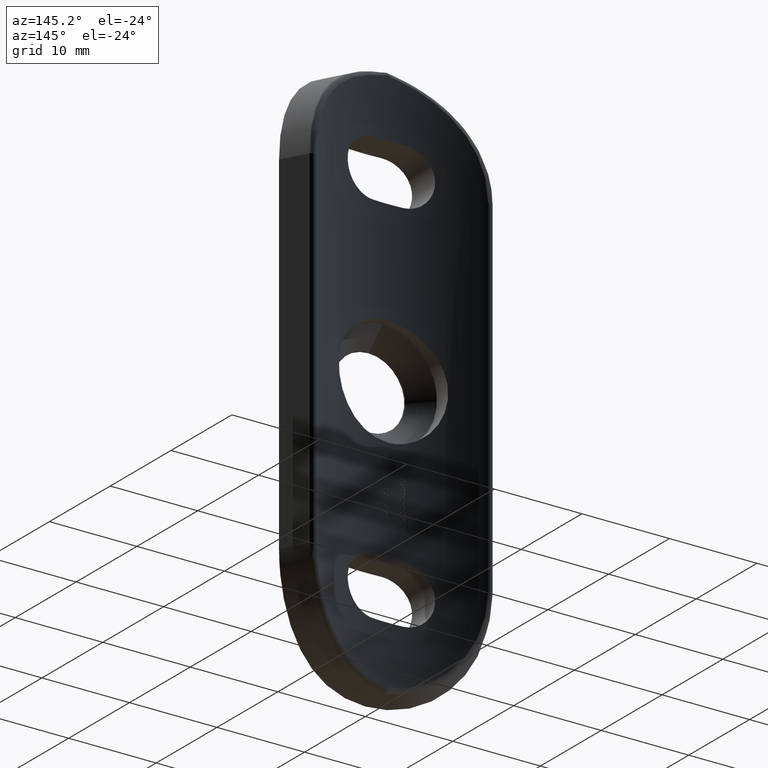
[diagram: clean part render]
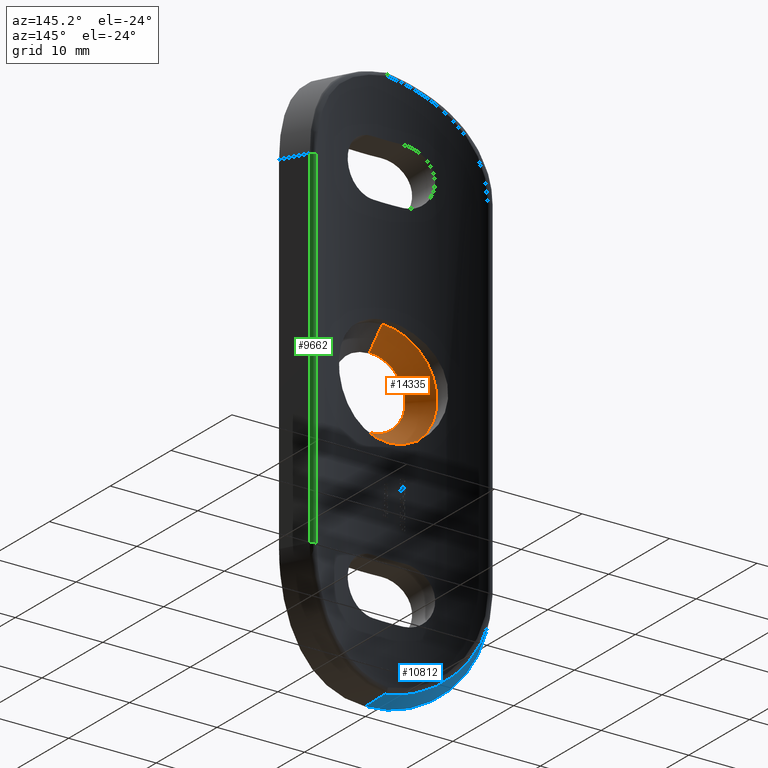
[diagram: same view with three faces highlighted in distinct colors, each labeled with its STEP entity id]
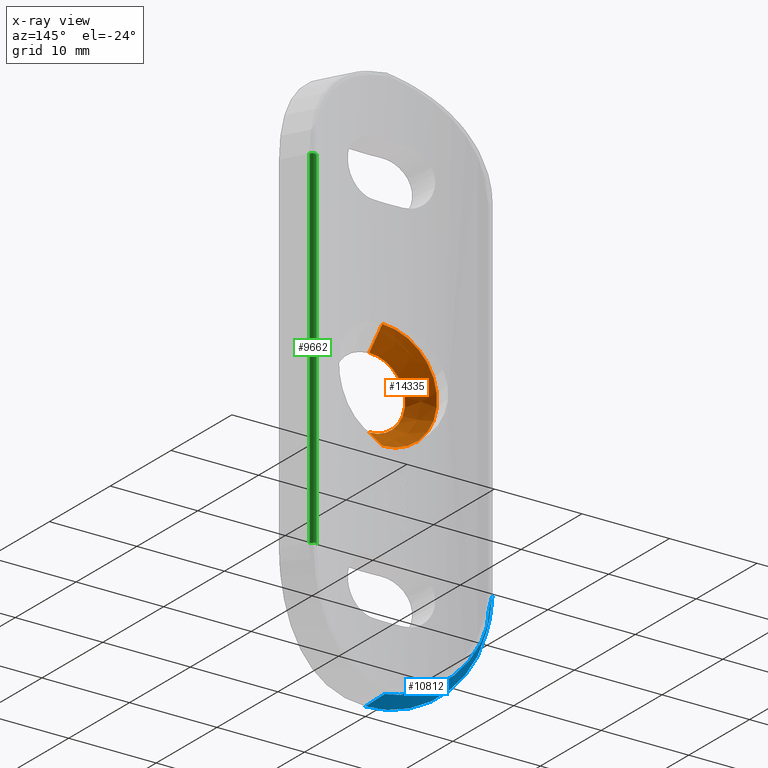
[diagram: x-ray of the same camera — body ghosted, the three highlighted faces saturated]
A machine part, auxiliary view with three faces highlighted in distinct colors.
The next image is the same camera in x-ray (body ghosted, the three faces saturated) — at least one of them is partly hidden behind the body in this view.
Their STEP definitions:

[orange] entity #14335 — the highlighted conical surface has half-angle 45 deg.
#542 = CARTESIAN_POINT ( 'NONE',  ( 0.0000000000000000000, 0.6499999999999734900, 4.099999999999999600 ) ) ;
#1817 = DIRECTION ( 'NONE',  ( 8.659560562354884800E-017, 0.7071067811865515700, -0.7071067811865435800 ) ) ;
#2496 = ORIENTED_EDGE ( 'NONE', *, *, #7634, .F. ) ;
#2539 = CARTESIAN_POINT ( 'NONE',  ( 0.0000000000000000000, 2.800000000000000300, 0.0000000000000000000 ) ) ;
#2854 = VERTEX_POINT ( 'NONE', #542 ) ;
#3999 = ORIENTED_EDGE ( 'NONE', *, *, #7363, .F. ) ;
#4606 = CARTESIAN_POINT ( 'NONE',  ( 0.0000000000000000000, 0.6499999999999734900, 0.0000000000000000000 ) ) ;
#4680 = CARTESIAN_POINT ( 'NONE',  ( 6.337547185587553000E-016, 0.6499999999999734900, -4.099999999999999600 ) ) ;
#4724 = DIRECTION ( 'NONE',  ( 0.0000000000000000000, 0.0000000000000000000, 1.000000000000000000 ) ) ;
#4815 = DIRECTION ( 'NONE',  ( -0.0000000000000000000, -1.000000000000000000, -0.0000000000000000000 ) ) ;
#4916 = VECTOR ( 'NONE', #1817, 999.9999999999998900 ) ;
#7075 = CARTESIAN_POINT ( 'NONE',  ( 0.0000000000000000000, 0.6499999999999734900, 0.0000000000000000000 ) ) ;
#7156 = VERTEX_POINT ( 'NONE', #9266 ) ;
#7363 = EDGE_CURVE ( 'NONE', #2854, #8694, #8332, .T. ) ;
#7475 = EDGE_CURVE ( 'NONE', #11031, #7156, #9071, .T. ) ;
#7527 = CIRCLE ( 'NONE', #11072, 4.099999999999999600 ) ;
#7634 = EDGE_CURVE ( 'NONE', #8694, #7156, #13723, .T. ) ;
#7699 = CARTESIAN_POINT ( 'NONE',  ( 5.021051876504147400E-016, 0.6499999999999734900, -4.099999999999999600 ) ) ;
#8332 = LINE ( 'NONE', #10884, #12633 ) ;
#8694 = VERTEX_POINT ( 'NONE', #14645 ) ;
#9071 = LINE ( 'NONE', #7699, #4916 ) ;
#9266 = CARTESIAN_POINT ( 'NONE',  ( 0.0000000000000000000, 2.800000000000000300, -6.250000000000001800 ) ) ;
#9815 = DIRECTION ( 'NONE',  ( 0.0000000000000000000, 0.0000000000000000000, -1.000000000000000000 ) ) ;
#10884 = CARTESIAN_POINT ( 'NONE',  ( 0.0000000000000000000, 0.6499999999999734900, 4.099999999999999600 ) ) ;
#11031 = VERTEX_POINT ( 'NONE', #4680 ) ;
#11072 = AXIS2_PLACEMENT_3D ( 'NONE', #4606, #4815, #15536 ) ;
#11416 = EDGE_CURVE ( 'NONE', #2854, #11031, #7527, .T. ) ;
#11950 = DIRECTION ( 'NONE',  ( 0.0000000000000000000, 1.000000000000000000, 0.0000000000000000000 ) ) ;
#12633 = VECTOR ( 'NONE', #14378, 999.9999999999998900 ) ;
#12839 = CONICAL_SURFACE ( 'NONE', #12992, 4.099999999999999600, 0.7853981633974426200 ) ;
#12992 = AXIS2_PLACEMENT_3D ( 'NONE', #7075, #11950, #4724 ) ;
#13519 = DIRECTION ( 'NONE',  ( -0.0000000000000000000, -1.000000000000000000, -0.0000000000000000000 ) ) ;
#13723 = CIRCLE ( 'NONE', #13743, 6.250000000000001800 ) ;
#13743 = AXIS2_PLACEMENT_3D ( 'NONE', #2539, #13519, #9815 ) ;
#13869 = FACE_OUTER_BOUND ( 'NONE', #14334, .T. ) ;
#14334 = EDGE_LOOP ( 'NONE', ( #14478, #15213, #2496, #3999 ) ) ;
#14335 = ADVANCED_FACE ( 'NONE', ( #13869 ), #12839, .F. ) ;
#14378 = DIRECTION ( 'NONE',  ( 0.0000000000000000000, 0.7071067811865515700, 0.7071067811865435800 ) ) ;
#14478 = ORIENTED_EDGE ( 'NONE', *, *, #11416, .T. ) ;
#14645 = CARTESIAN_POINT ( 'NONE',  ( 7.654042494670960600E-016, 2.800000000000000300, 6.250000000000002700 ) ) ;
#15213 = ORIENTED_EDGE ( 'NONE', *, *, #7475, .T. ) ;
#15536 = DIRECTION ( 'NONE',  ( 0.0000000000000000000, 0.0000000000000000000, -1.000000000000000000 ) ) ;

[blue] entity #10812 — the highlighted cylindrical surface (partial cylindrical patch) has radius 12 mm, axis along (-0.4819, -0.8762, 0).
#279 = CARTESIAN_POINT ( 'NONE',  ( -10.45505487545768000, 5.891269701761550500, -20.00000000000000400 ) ) ;
#460 = VERTEX_POINT ( 'NONE', #4483 ) ;
#830 = CARTESIAN_POINT ( 'NONE',  ( -3.198330643184879900, 0.2031510813098111900, -31.65048156429587700 ) ) ;
#1002 = CARTESIAN_POINT ( 'NONE',  ( -9.887935222964619800, 2.046306664894907100, -27.14406495904744400 ) ) ;
#1416 = CARTESIAN_POINT ( 'NONE',  ( -6.164181800682564800, 0.7651474880378932300, -30.55211743802890100 ) ) ;
#1439 = CARTESIAN_POINT ( 'NONE',  ( -5.467565589066913900, 3.970306275829788700, -29.95920198927894900 ) ) ;
#1490 = CARTESIAN_POINT ( 'NONE',  ( -4.534825437327057800, 3.748821515126901100, -30.52213823842947700 ) ) ;
#1534 = DIRECTION ( 'NONE',  ( -0.4819277108433738800, -0.8762109800277929600, 0.0000000000000000000 ) ) ;
#1541 = CARTESIAN_POINT ( 'NONE',  ( -6.614694112078482600, 4.293231788751549900, -29.09215257876479300 ) ) ;
#2208 = CARTESIAN_POINT ( 'NONE',  ( -9.659094786861166100, 1.948286492643255000, -27.46718664785970200 ) ) ;
#2632 = CARTESIAN_POINT ( 'NONE',  ( -8.056363116155694100, 4.804545384783355500, -27.50031777044232900 ) ) ;
#2679 = CARTESIAN_POINT ( 'NONE',  ( 0.2976642904539989500, 0.5411946932902975700, -20.00000000000000400 ) ) ;
#3363 = EDGE_CURVE ( 'NONE', #13975, #12611, #4622, .T. ) ;
#3459 = EDGE_CURVE ( 'NONE', #7533, #460, #13655, .T. ) ;
#3854 = CARTESIAN_POINT ( 'NONE',  ( -0.7358220946504399100, 3.251452348229520300, -31.79923357073366600 ) ) ;
#3951 = CARTESIAN_POINT ( 'NONE',  ( -5.764533070701305400, 4.049605539781783400, -29.75166888921781400 ) ) ;
#4483 = CARTESIAN_POINT ( 'NONE',  ( 1.354727536736092600E-015, 0.0000000000000000000, -32.00000000000000000 ) ) ;
#4622 = B_SPLINE_CURVE_WITH_KNOTS ( 'NONE', 3,
 ( #279, #14502, #11121, #14557, #10970, #8664, #12339, #5186, #13516, #8565, #8712, #2632, #6368, #11175, #1541, #3951, #1439, #13408, #1490, #12387, #6259, #14719, #7581, #3854, #5023, #14613 ),
 .UNSPECIFIED., .F., .F.,
 ( 4, 2, 2, 2, 2, 2, 2, 2, 2, 2, 2, 2, 4 ),
 ( 0.0000000000000000000, 0.002199629699753315400, 0.003299444549629968600, 0.004399259399506621300, 0.006598889099259936400, 0.007698703949136591700, 0.008798518799013246200, 0.01099814849876655000, 0.01209796334864320400, 0.01319777819851985900, 0.01539740789827316900, 0.01649722274814982900, 0.01759703759802648500 ),
 .UNSPECIFIED. ) ;
#5023 = CARTESIAN_POINT ( 'NONE',  ( -0.3694255239971571100, 3.236962632278305800, -31.85580555292284200 ) ) ;
#5186 = CARTESIAN_POINT ( 'NONE',  ( -9.493047847731208600, 5.415295632416780700, -25.01326570578500300 ) ) ;
#5290 = CARTESIAN_POINT ( 'NONE',  ( -11.62834804759316000, 2.881689642610588900, -23.18144421163977900 ) ) ;
#5434 = CARTESIAN_POINT ( 'NONE',  ( -4.352835420540757600, 0.3805286105153351500, -31.32115928304209600 ) ) ;
#5684 = LINE ( 'NONE', #5860, #8690 ) ;
#5860 = CARTESIAN_POINT ( 'NONE',  ( -10.21686746987951700, 6.324327223410784300, -20.00000000000000400 ) ) ;
#5874 = CARTESIAN_POINT ( 'NONE',  ( -12.00000000000000000, 3.082346597307949100, -20.00000000000000400 ) ) ;
#6010 = CARTESIAN_POINT ( 'NONE',  ( -0.8129078222397836400, 3.777766944754178500E-016, -32.00000000000000700 ) ) ;
#6028 = CARTESIAN_POINT ( 'NONE',  ( -7.494247687663858800, 1.144484963655815600, -29.69387504587054500 ) ) ;
#6138 = CARTESIAN_POINT ( 'NONE',  ( -8.913816326006879000, 1.648370712723072900, -28.37356755031020600 ) ) ;
#6259 = CARTESIAN_POINT ( 'NONE',  ( -2.885545255493512600, 3.445901236858847300, -31.26614118052227600 ) ) ;
#6368 = CARTESIAN_POINT ( 'NONE',  ( -7.833305283921841800, 4.719266358118379600, -27.78663773652138100 ) ) ;
#6474 = ORIENTED_EDGE ( 'NONE', *, *, #3363, .T. ) ;
#6717 = CARTESIAN_POINT ( 'NONE',  ( -3.974160166930936100, 0.3160679226588403200, -31.44271765376582200 ) ) ;
#6877 = CARTESIAN_POINT ( 'NONE',  ( -11.28972141810764600, 2.705919538751912600, -24.33666306912914500 ) ) ;
#7064 = CARTESIAN_POINT ( 'NONE',  ( -1.615684953159060900, 0.03974048908352446200, -31.93706210126419300 ) ) ;
#7067 = EDGE_CURVE ( 'NONE', #13975, #7533, #5684, .T. ) ;
#7533 = VERTEX_POINT ( 'NONE', #5874 ) ;
#7574 = CARTESIAN_POINT ( 'NONE',  ( -10.45505487545768000, 5.891269701761550500, -20.00000000000000400 ) ) ;
#7581 = CARTESIAN_POINT ( 'NONE',  ( -1.462267733718391800, 3.297284311261307300, -31.65653743707209200 ) ) ;
#7623 = DIRECTION ( 'NONE',  ( 0.8762109800277929600, -0.4819277108433738800, 0.0000000000000000000 ) ) ;
#7635 = CARTESIAN_POINT ( 'NONE',  ( -11.71658496996893100, 2.928699025537531100, -22.79178284133483200 ) ) ;
#8565 = CARTESIAN_POINT ( 'NONE',  ( -8.663671254142761000, 5.049547193717774700, -26.60600176303315200 ) ) ;
#8664 = CARTESIAN_POINT ( 'NONE',  ( -9.960288091199423400, 5.640309669445871400, -23.62431856137340000 ) ) ;
#8690 = VECTOR ( 'NONE', #12948, 1000.000000000000000 ) ;
#8712 = CARTESIAN_POINT ( 'NONE',  ( -8.471561614151776000, 4.969723628537183300, -26.90975643252787800 ) ) ;
#9495 = CARTESIAN_POINT ( 'NONE',  ( -9.292458090220129900E-015, 3.231345056262483300, -31.89852492656308800 ) ) ;
#9617 = CARTESIAN_POINT ( 'NONE',  ( -2.803457390454646700, 0.1551245332614457400, -31.73589290901538000 ) ) ;
#10074 = CARTESIAN_POINT ( 'NONE',  ( -11.92848342012842300, 3.042575568667968500, -21.61270732962850300 ) ) ;
#10136 = FACE_OUTER_BOUND ( 'NONE', #11019, .T. ) ;
#10575 = CARTESIAN_POINT ( 'NONE',  ( -10.86543210599210400, 2.493472959304764200, -25.44850832163290700 ) ) ;
#10597 = ORIENTED_EDGE ( 'NONE', *, *, #7067, .F. ) ;
#10668 = CARTESIAN_POINT ( 'NONE',  ( 1.354727536736092600E-015, 0.0000000000000000000, -32.00000000000000000 ) ) ;
#10812 = ADVANCED_FACE ( 'NONE', ( #10136 ), #14066, .T. ) ;
#10970 = CARTESIAN_POINT ( 'NONE',  ( -10.14034840887877600, 5.729866555024366400, -22.91475408195938400 ) ) ;
#11019 = EDGE_LOOP ( 'NONE', ( #10597, #6474, #13370, #13657 ) ) ;
#11121 = CARTESIAN_POINT ( 'NONE',  ( -10.39441033852605000, 5.859319790259929700, -21.47575775976510900 ) ) ;
#11175 = CARTESIAN_POINT ( 'NONE',  ( -7.131093571847407600, 4.464168087506227100, -28.60124151802544600 ) ) ;
#11696 = CARTESIAN_POINT ( 'NONE',  ( 1.354727536736092600E-015, 0.0000000000000000000, -32.00000000000000000 ) ) ;
#12339 = CARTESIAN_POINT ( 'NONE',  ( -9.854190850945034400, 5.588249747847273200, -23.97806087955933000 ) ) ;
#12387 = CARTESIAN_POINT ( 'NONE',  ( -3.563487049633615300, 3.553619597859448900, -31.00564224895478600 ) ) ;
#12540 = CARTESIAN_POINT ( 'NONE',  ( -12.00000000000000000, 3.082346597307949100, -20.00000000000000400 ) ) ;
#12576 = EDGE_CURVE ( 'NONE', #460, #12611, #14415, .T. ) ;
#12611 = VERTEX_POINT ( 'NONE', #13944 ) ;
#12620 = CARTESIAN_POINT ( 'NONE',  ( -5.461449533831194400, 0.5946676084917533700, -30.90257824629769300 ) ) ;
#12948 = DIRECTION ( 'NONE',  ( -0.4819277108433738800, -0.8762109800277929600, 0.0000000000000000000 ) ) ;
#13370 = ORIENTED_EDGE ( 'NONE', *, *, #12576, .F. ) ;
#13408 = CARTESIAN_POINT ( 'NONE',  ( -4.850982341867976700, 3.819503937024062000, -30.34545285072242000 ) ) ;
#13516 = CARTESIAN_POINT ( 'NONE',  ( -9.196144659064131600, 5.277887941172747500, -25.67001518979865800 ) ) ;
#13655 = B_SPLINE_CURVE_WITH_KNOTS ( 'NONE', 3,
 ( #12540, #14918, #10074, #7635, #5290, #13676, #6877, #10575, #15360, #1002, #2208, #14243, #6138, #14537, #6028, #1416, #12620, #5434, #6717, #830, #9617, #7064, #6010, #10668 ),
 .UNSPECIFIED., .F., .F.,
 ( 4, 2, 2, 2, 2, 2, 2, 2, 2, 2, 2, 4 ),
 ( 0.0000000000000000000, 0.002405426272235853700, 0.003608139408353785500, 0.004810852544471717700, 0.007216278816707581400, 0.008418991952825511900, 0.009621705088943438900, 0.01202713136117930700, 0.01443255763341517500, 0.01563527076953311400, 0.01683798390565104800, 0.01924341017788692600 ),
 .UNSPECIFIED. ) ;
#13657 = ORIENTED_EDGE ( 'NONE', *, *, #3459, .F. ) ;
#13676 = CARTESIAN_POINT ( 'NONE',  ( -11.41507547166433400, 2.770370059883678200, -23.95386468381838400 ) ) ;
#13769 = AXIS2_PLACEMENT_3D ( 'NONE', #2679, #1534, #7623 ) ;
#13944 = CARTESIAN_POINT ( 'NONE',  ( -9.292458090220129900E-015, 3.231345056262483300, -31.89852492656308800 ) ) ;
#13975 = VERTEX_POINT ( 'NONE', #7574 ) ;
#14066 = CYLINDRICAL_SURFACE ( 'NONE', #13769, 12.00000000000000000 ) ;
#14243 = CARTESIAN_POINT ( 'NONE',  ( -9.171811217397623400, 1.749251761168285800, -28.08196296880781900 ) ) ;
#14415 =( BOUNDED_CURVE ( )  B_SPLINE_CURVE ( 3, ( #11696, #15274, #15372, #9495 ),
 .UNSPECIFIED., .F., .T. ) 
 B_SPLINE_CURVE_WITH_KNOTS ( ( 4, 4 ),
 ( 4.712388980384689700, 4.842528913632068400 ),
 .UNSPECIFIED. ) 
 CURVE ( )  GEOMETRIC_REPRESENTATION_ITEM ( )  RATIONAL_B_SPLINE_CURVE ( ( 1.000000000000000000, 0.9985891310666824600, 0.9985891310666824600, 1.000000000000000000 ) ) 
 REPRESENTATION_ITEM ( '' )  );
#14502 = CARTESIAN_POINT ( 'NONE',  ( -10.45505487545768200, 5.891269701761549600, -20.74369463097170700 ) ) ;
#14537 = CARTESIAN_POINT ( 'NONE',  ( -8.096501375618357700, 1.345930086255301600, -29.20234642595246700 ) ) ;
#14557 = CARTESIAN_POINT ( 'NONE',  ( -10.21500871849437800, 5.767696369064181800, -22.55711163707681500 ) ) ;
#14613 = CARTESIAN_POINT ( 'NONE',  ( -9.292458090220129900E-015, 3.231345056262483300, -31.89852492656308800 ) ) ;
#14719 = CARTESIAN_POINT ( 'NONE',  ( -1.823709883739454100, 3.328802529533186700, -31.56997820427039900 ) ) ;
#14918 = CARTESIAN_POINT ( 'NONE',  ( -12.00000000000000000, 3.082346597307950000, -20.81330633155848600 ) ) ;
#15274 = CARTESIAN_POINT ( 'NONE',  ( -6.499600266619000600E-015, 1.080924397931964500, -32.00000000000000000 ) ) ;
#15360 = CARTESIAN_POINT ( 'NONE',  ( -10.51663599609498500, 2.325221696771320600, -26.15040292986302700 ) ) ;
#15372 = CARTESIAN_POINT ( 'NONE',  ( -7.900479349909699300E-015, 2.159561231885483800, -31.96612718541926100 ) ) ;

[green] entity #9662 — the highlighted cylindrical surface (edge-blend (fillet) strip) has radius 0.5 mm, axis along (-0, -0, -1).
#245 = VECTOR ( 'NONE', #3433, 1000.000000000000000 ) ;
#430 = VECTOR ( 'NONE', #6599, 1000.000000000000000 ) ;
#2174 = CARTESIAN_POINT ( 'NONE',  ( 10.45505487545767500, 5.891269701761541600, 32.00000000000000000 ) ) ;
#2328 = EDGE_LOOP ( 'NONE', ( #3014, #8364, #3963, #5034 ) ) ;
#2560 = CARTESIAN_POINT ( 'NONE',  ( 10.01694938544378000, 5.650305846339853700, 32.00000000000000000 ) ) ;
#3014 = ORIENTED_EDGE ( 'NONE', *, *, #5998, .T. ) ;
#3051 = CARTESIAN_POINT ( 'NONE',  ( 10.45505487545767500, 5.891269701761541600, -20.00000000000000400 ) ) ;
#3433 = DIRECTION ( 'NONE',  ( -0.0000000000000000000, -0.0000000000000000000, 1.000000000000000000 ) ) ;
#3871 = AXIS2_PLACEMENT_3D ( 'NONE', #13211, #11813, #8320 ) ;
#3963 = ORIENTED_EDGE ( 'NONE', *, *, #5719, .F. ) ;
#4296 = EDGE_CURVE ( 'NONE', #13457, #13315, #10607, .T. ) ;
#4358 = CIRCLE ( 'NONE', #3871, 0.5000000000000004400 ) ;
#4488 = DIRECTION ( 'NONE',  ( 0.0000000000000000000, 0.0000000000000000000, -1.000000000000000000 ) ) ;
#4993 = EDGE_CURVE ( 'NONE', #5696, #8368, #10048, .T. ) ;
#5034 = ORIENTED_EDGE ( 'NONE', *, *, #4993, .F. ) ;
#5098 = DIRECTION ( 'NONE',  ( -0.0000000000000000000, -0.0000000000000000000, -1.000000000000000000 ) ) ;
#5232 = AXIS2_PLACEMENT_3D ( 'NONE', #2560, #5098, #13486 ) ;
#5696 = VERTEX_POINT ( 'NONE', #10553 ) ;
#5719 = EDGE_CURVE ( 'NONE', #8368, #13457, #10777, .T. ) ;
#5998 = EDGE_CURVE ( 'NONE', #5696, #13315, #4358, .T. ) ;
#6599 = DIRECTION ( 'NONE',  ( -0.0000000000000000000, -0.0000000000000000000, -1.000000000000000000 ) ) ;
#6615 = CYLINDRICAL_SURFACE ( 'NONE', #5232, 0.5000000000000004400 ) ;
#8096 = CARTESIAN_POINT ( 'NONE',  ( 10.01694938544377900, 5.650305846339858100, -20.00000000000000400 ) ) ;
#8320 = DIRECTION ( 'NONE',  ( -1.000000000000000000, 0.0000000000000000000, 0.0000000000000000000 ) ) ;
#8364 = ORIENTED_EDGE ( 'NONE', *, *, #4296, .F. ) ;
#8368 = VERTEX_POINT ( 'NONE', #12777 ) ;
#9662 = ADVANCED_FACE ( 'NONE', ( #9790 ), #6615, .T. ) ;
#9790 = FACE_OUTER_BOUND ( 'NONE', #2328, .T. ) ;
#9865 = CARTESIAN_POINT ( 'NONE',  ( 10.45505487545767300, 5.891269701761546100, 20.00000000000000000 ) ) ;
#10048 = LINE ( 'NONE', #13642, #430 ) ;
#10489 = DIRECTION ( 'NONE',  ( -1.000000000000000000, 0.0000000000000000000, 0.0000000000000000000 ) ) ;
#10553 = CARTESIAN_POINT ( 'NONE',  ( 9.786144100064888100, 6.093847186285945100, 20.00000000000000000 ) ) ;
#10607 = LINE ( 'NONE', #2174, #245 ) ;
#10777 = CIRCLE ( 'NONE', #14343, 0.5000000000000004400 ) ;
#11813 = DIRECTION ( 'NONE',  ( 0.0000000000000000000, 0.0000000000000000000, -1.000000000000000000 ) ) ;
#12777 = CARTESIAN_POINT ( 'NONE',  ( 9.786144100064888100, 6.093847186285944200, -20.00000000000000400 ) ) ;
#13211 = CARTESIAN_POINT ( 'NONE',  ( 10.01694938544377900, 5.650305846339859000, 20.00000000000000000 ) ) ;
#13315 = VERTEX_POINT ( 'NONE', #9865 ) ;
#13457 = VERTEX_POINT ( 'NONE', #3051 ) ;
#13486 = DIRECTION ( 'NONE',  ( -1.000000000000000000, 0.0000000000000000000, 0.0000000000000000000 ) ) ;
#13642 = CARTESIAN_POINT ( 'NONE',  ( 9.786144100064888100, 6.093847186285944200, 32.00000000000000000 ) ) ;
#14343 = AXIS2_PLACEMENT_3D ( 'NONE', #8096, #4488, #10489 ) ;